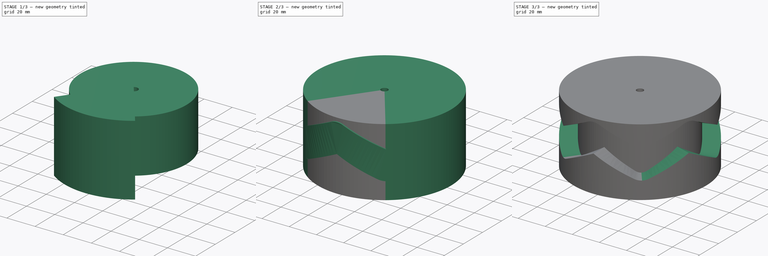
[diagram: build sequence overview — one tinted view per stage of 3, left to right]
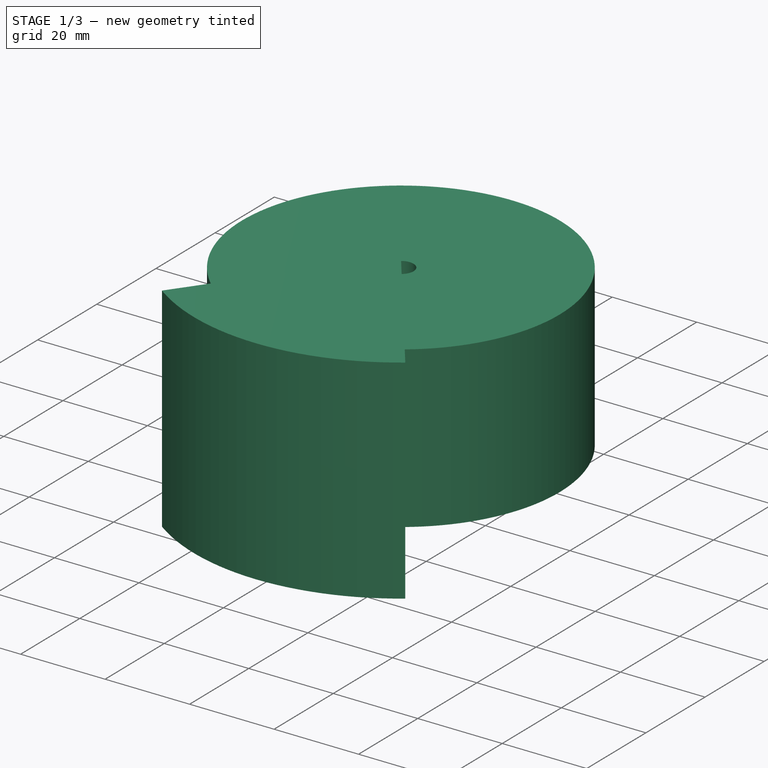
[diagram: stage 1 of 3 — iso view after this stage's code; geometry added in this stage tinted green]
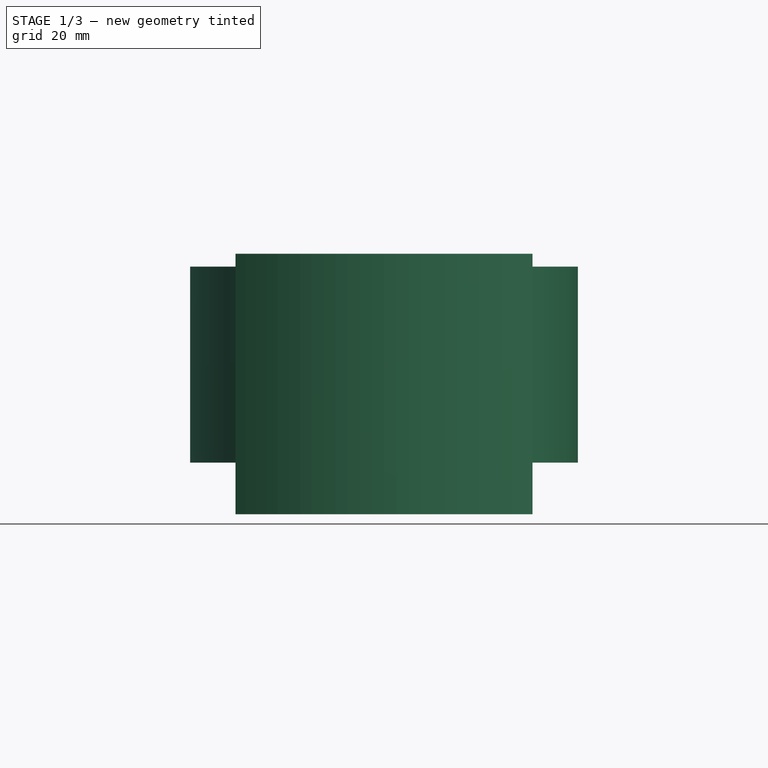
[diagram: stage 1 of 3 — front view after this stage's code; geometry added in this stage tinted green]
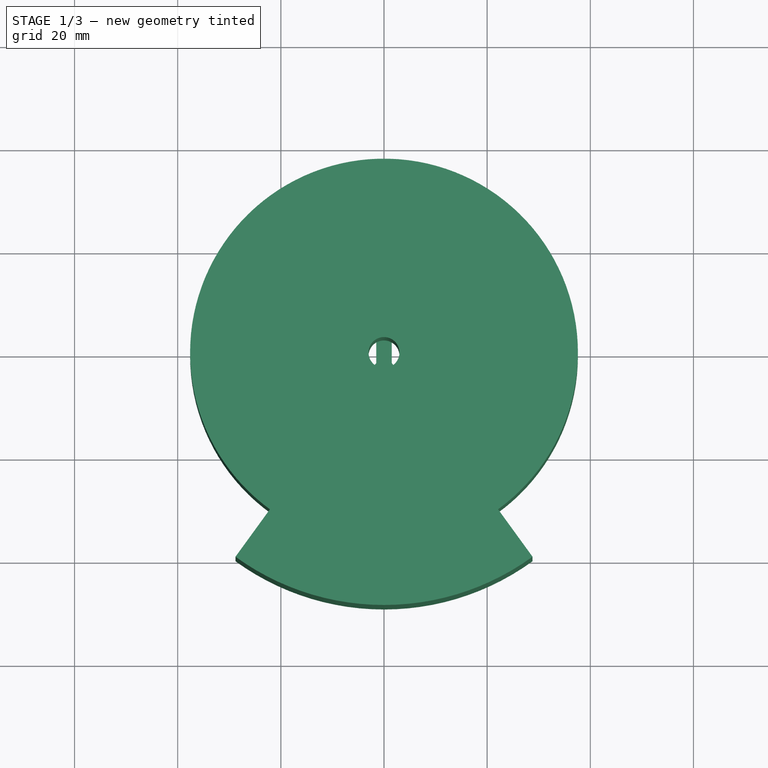
[diagram: stage 1 of 3 — top view after this stage's code; geometry added in this stage tinted green]
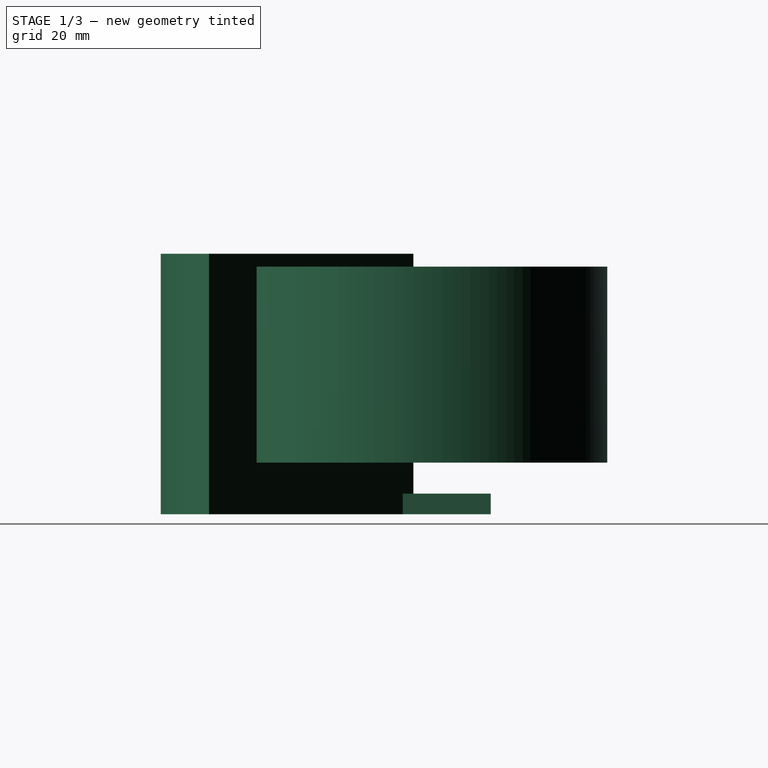
[diagram: stage 1 of 3 — right view after this stage's code; geometry added in this stage tinted green]
FCSTD DOCUMENT  (FreeCAD 0.22R38467 (Git))
Label: camgroove
objects: Part::FeaturePython×4, PartDesign::Line×3, Part::Cut×2, Part::Cylinder×1, App::VarSet×1, Sketcher::SketchObject×1, Part::Box×1, App::Part×1
note: 13 computed .brp shape members not serialized (recipe doc carries the construction recipe); baked Part::Feature solids carry a one-line shape summary decoded from their .brp

FEATURE [Part::Cylinder] Cylinder
  Angle = 72
  AttacherType = Attacher::AttachEngine3D
  FirstAngle = 0
  Height = 50.5
  Placement = pos=(0,0,0) rot=(0,0,1;-2.19911rad)
  Radius = 49
  SecondAngle = 0
  expr: .Placement.Rotation.Angle = -90 ° - 180 ° / VarSet.Peaks
  expr: Angle = 360 / VarSet.Peaks
  expr: Height = VarSet.Base_CylinderHeight
  expr: Radius = VarSet.Base_CylinderRadius
FEATURE [Part::Box] Box  label="Key Slot"
  AttacherType = Attacher::AttachEngine3D
  Height = 4
  Length = 3
  Placement = pos=(-1.5,-15,0) rot=(0,0,1;0rad)
  Width = 30
  expr: .Placement.Base.x = Length * -0.5
  expr: .Placement.Base.y = Width * -0.5
FEATURE [PartDesign::Line] HoleAxis_1  label="Axle AP"
  AttacherType = Attacher::AttachEngineLine
  AttachmentSupport = -> [Cut001]
  Length = 4.12311
  MapMode = 19
  Placement = pos=(0,4e-16,0) rot=(0,0,1;2.2143rad)
  ResizeMode = 1
FEATURE [PartDesign::Line] Axis_1  label="Key1 AP"
  AttacherType = Attacher::AttachEngineLine
  AttachmentOffset = pos=(0,0,-7) rot=(0,0,1;0rad)
  AttachmentSupport = -> [Cut001]
  Length = 200
  MapMode = 42
  Placement = pos=(1e-15,-8.5,-7) rot=(0,0,1;0rad)
  ResizeMode = 1
FEATURE [PartDesign::Line] Axis_2  label="Key2 AP"
  AttacherType = Attacher::AttachEngineLine
  AttachmentOffset = pos=(0,0,-7) rot=(0,0,1;0rad)
  AttachmentSupport = -> [Cut001]
  Length = 200
  MapMode = 42
  Placement = pos=(8e-16,8.5,-7) rot=(0,0,1;0rad)
  ResizeMode = 1
FEATURE [Part::FeaturePython] Tube001  label="Colour for render"  # WARN: FeaturePython — macro-defined, semantics opaque (R4)
  AttacherType = Attacher::AttachEngine3D
  Height = 38
  InnerRadius = 3
  OuterRadius = 37.6
  Placement = pos=(0,0,10) rot=(0,0,1;0rad)
FEATURE [App::Part] Part  label="Cam Groove"
  Group = -> [VarSet,Cylinder,Sketch_On_Surface,Array,Tube,Cut,Mapped_Sketch,Box,Cut001,HoleAxis_1,Axis_1,Axis_2,Tube001]
  Origin = -> Origin
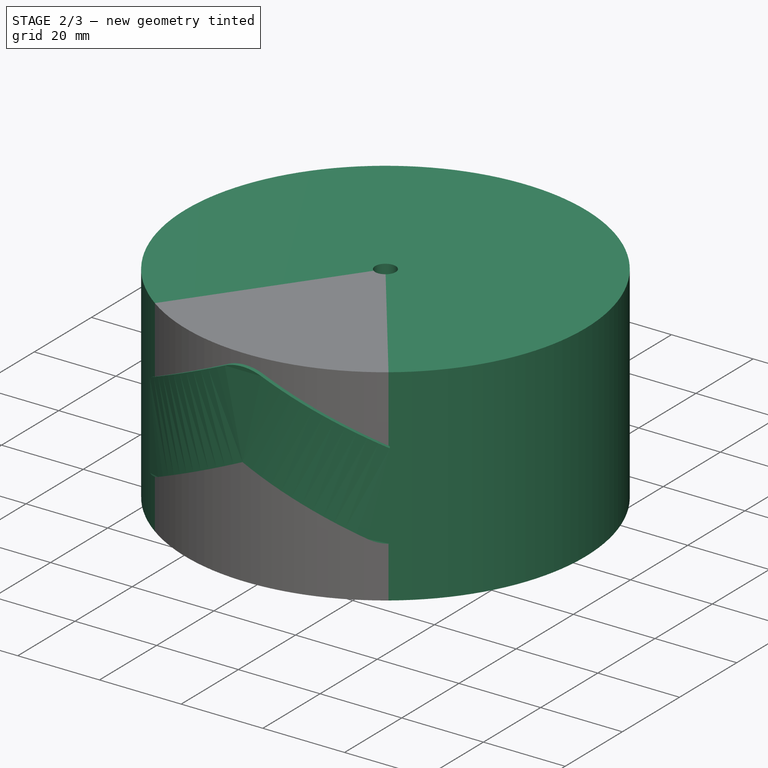
[diagram: stage 2 of 3 — iso view after this stage's code; geometry added in this stage tinted green]
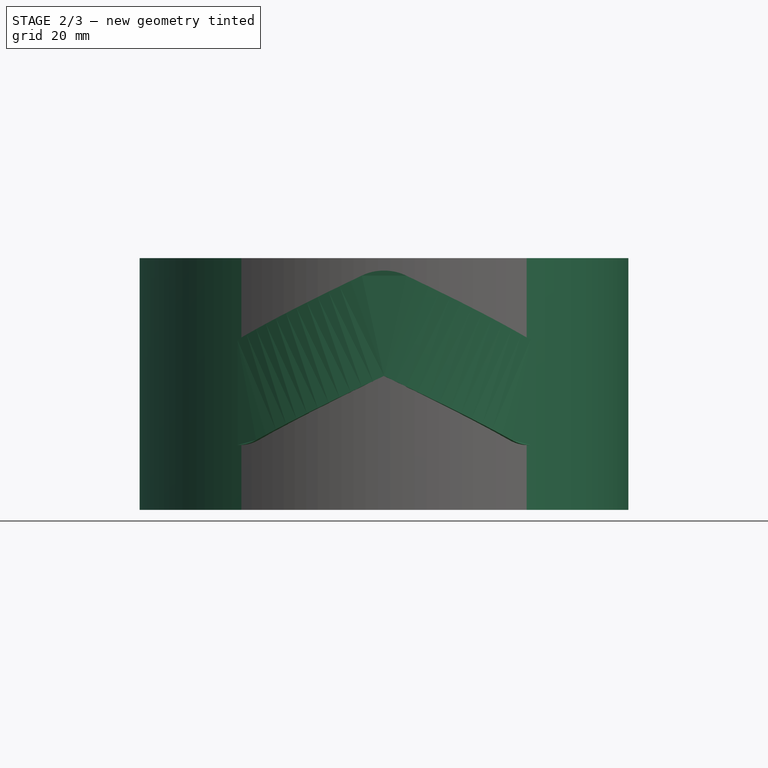
[diagram: stage 2 of 3 — front view after this stage's code; geometry added in this stage tinted green]
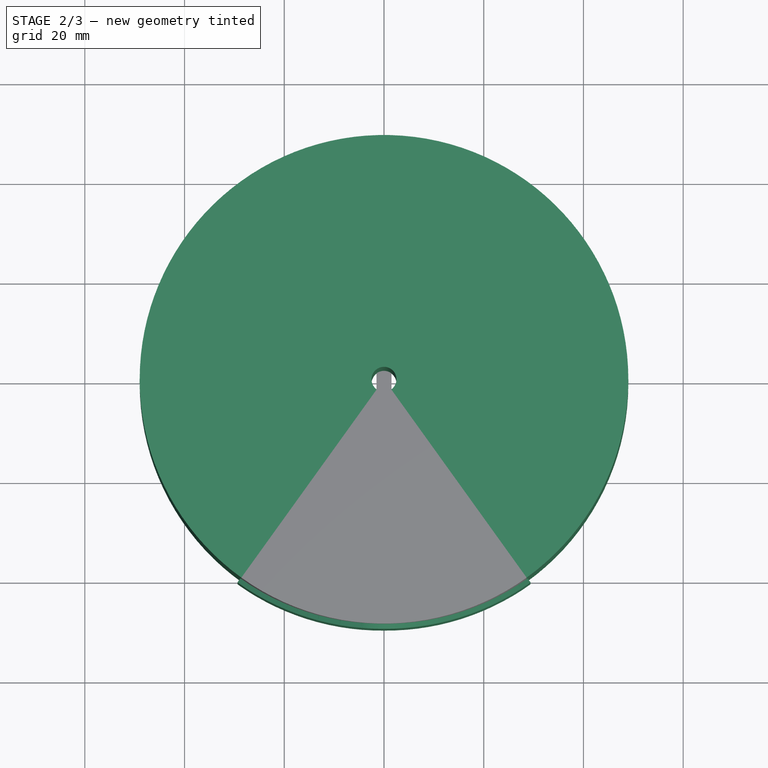
[diagram: stage 2 of 3 — top view after this stage's code; geometry added in this stage tinted green]
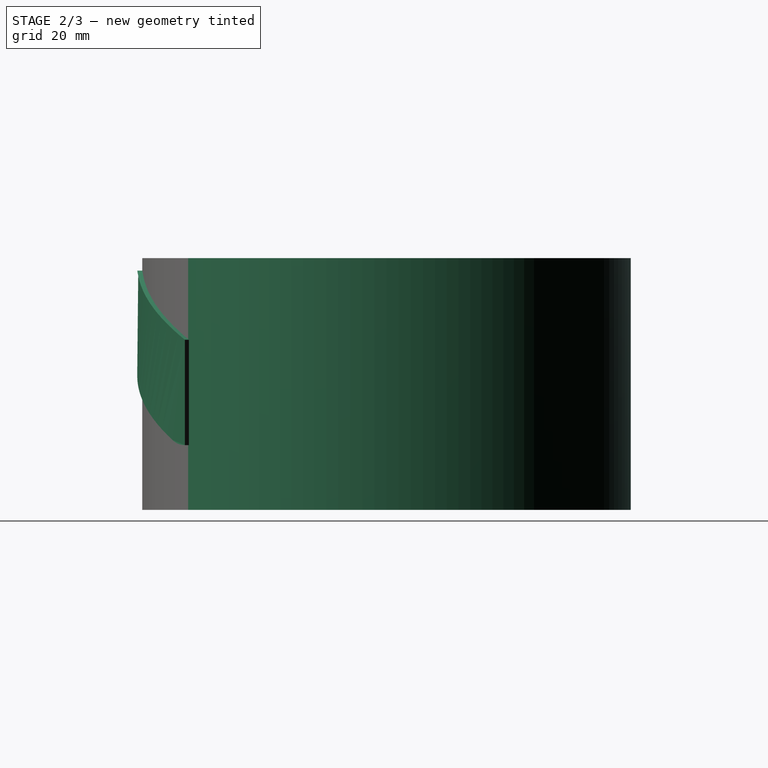
[diagram: stage 2 of 3 — right view after this stage's code; geometry added in this stage tinted green]
FEATURE [App::VarSet] VarSet
  Base_CylinderHeight = 50.5
  Base_CylinderRadius = 49
  BottomPad = 13
  CamTravel = 15
  GrooveDepth = 12
  InnerRadius = 2.5
  NomGrooveWidth = 20
  Peaks = 5
  TopPad = 2.5
  expr: Base_CylinderHeight = NomGrooveWidth + CamTravel + TopPad + BottomPad
FEATURE [Sketcher::SketchObject] Mapped_Sketch
  ArcFitTolerance = 1e-06
  AttachmentSupport = -> [Cylinder]
  FullyConstrained = true
  MakeInternals = false
  expr: .Constraints.CamTravel = VarSet.CamTravel
  expr: .Constraints.CylinderHeight = Cylinder.Height
  expr: .Constraints.ForcedTrackWidth = VarSet.NomGrooveWidth
  expr: .Constraints.NomTrackWidth = VarSet.NomGrooveWidth
  expr: .Constraints.arclength = 2 * pi * Cylinder.Radius / VarSet.Peaks
  expr: Constraints[33] = VarSet.NomGrooveWidth / 2 + VarSet.TopPad
  sketch-geometry (21):
    g0: LineSegment [constr] StartX=0 StartY=0 StartZ=0 EndX=61.5752 EndY=0 EndZ=0
    g1: LineSegment [constr] StartX=61.5752 StartY=0 StartZ=0 EndX=61.5752 EndY=50.5 EndZ=0
    g2: LineSegment [constr] StartX=61.5752 StartY=50.5 StartZ=0 EndX=0 EndY=50.5 EndZ=0
    g3: LineSegment [constr] StartX=0 StartY=50.5 StartZ=0 EndX=0 EndY=0 EndZ=0
    g4: ArcOfCircle [constr] CenterX=0 CenterY=27.5 CenterZ=0 NormalX=0 NormalY=0 NormalZ=1 AngleXU=0 Radius=10 StartAngle=4.71239 EndAngle=7.85398
    g5: Circle [constr] CenterX=30.7876 CenterY=12.5 CenterZ=0 NormalX=0 NormalY=0 NormalZ=1 AngleXU=0 Radius=10
    g6: ArcOfCircle [constr] CenterX=61.5752 CenterY=27.5 CenterZ=0 NormalX=0 NormalY=0 NormalZ=1 AngleXU=0 Radius=10 StartAngle=1.5708 EndAngle=4.71239
    g7: LineSegment StartX=3.1e-15 StartY=37.5 StartZ=0 EndX=3.1e-15 EndY=16.3763 EndZ=0
    g8: LineSegment StartX=61.5752 StartY=37.5 StartZ=0 EndX=61.5752 EndY=16.3763 EndZ=0
    g9: LineSegment StartX=4.37991 StartY=36.4898 StartZ=0 EndX=30.7876 EndY=23.6237 EndZ=0
    g10: LineSegment StartX=30.7876 StartY=23.6237 StartZ=0 EndX=57.1953 EndY=36.4898 EndZ=0
    g11: LineSegment StartX=35.1675 StartY=3.51021 StartZ=0 EndX=61.5752 EndY=16.3763 EndZ=0
    g12: LineSegment StartX=26.4077 StartY=3.51021 StartZ=0 EndX=3.6e-15 EndY=16.3763 EndZ=0
    g13: ArcOfCircle CenterX=30.7876 CenterY=12.5 CenterZ=0 NormalX=0 NormalY=0 NormalZ=1 AngleXU=0 Radius=10 StartAngle=4.25903 EndAngle=5.16575
    g14: LineSegment [constr] StartX=30.7876 StartY=12.5 StartZ=0 EndX=30.7876 EndY=23.6237 EndZ=0
    g15: LineSegment [constr] StartX=0 StartY=12.5 StartZ=0 EndX=61.5752 EndY=12.5 EndZ=0
    g16: ArcOfCircle CenterX=0 CenterY=27.5 CenterZ=0 NormalX=0 NormalY=0 NormalZ=1 AngleXU=0 Radius=10 StartAngle=1.11743 EndAngle=1.5708
    g17: ArcOfCircle CenterX=61.5752 CenterY=27.5 CenterZ=0 NormalX=0 NormalY=0 NormalZ=1 AngleXU=0 Radius=10 StartAngle=1.5708 EndAngle=2.02416
    g18: LineSegment [constr] StartX=56.9653 StartY=14.1303 StartZ=0 EndX=48.2055 EndY=32.1099 EndZ=0
    g19: LineSegment [constr] StartX=4.60989 StartY=14.1303 StartZ=0 EndX=13.3697 EndY=32.1099 EndZ=0
    g20: LineSegment [constr] StartX=22.0278 StartY=5.64414 StartZ=0 EndX=30.7876 EndY=23.6237 EndZ=0
  constraints (62):
    c: Coincident(g0,g-1)
    c: Coincident(g0,g1)
    c: Coincident(g1,g2)
    c: Coincident(g2,g3)
    c: Coincident(g3,g0)
    c: Horizontal(g0)
    c: Horizontal(g2)
    c: Vertical(g1)
    c: Vertical(g3)
    c: DistanceX(g2,g2) = 61.5752  'arclength'
    c: PointOnObject(g4,g3)
    c: PointOnObject(g4,g3)
    c: PointOnObject(g6,g1)
    c: Equal(g6,g4)
    c: Equal(g4,g5)
    c: Horizontal(g4,g6)
    c: DistanceY(g5,g4) = 15  'CamTravel'
    c: PointOnObject(g6,g1)
    c: Coincident(g7,g4)
    c: Vertical(g7)
    c: Coincident(g10,g9)
    c: PointOnObject(g11,g5)
    c: Coincident(g13,g5)
    c: Tangent(g13,g11) = -1.5708
    c: Tangent(g13,g12) = 1.5708
    c: Coincident(g9,g14)
    c: Vertical(g14)
    c: Coincident(g14,g5)
    c: PointOnObject(g15,g3)
    c: Horizontal(g15)
    c: PointOnObject(g15,g1)
    c: Symmetric(g15,g15,g5)
    c: Diameter(g5) = 20  'NomTrackWidth'
    c: DistanceY(g5) = 12.5
    c: Coincident(g16,g4)
    c: Coincident(g16,g4)
    c: Tangent(g16,g9) = 1.5708
    c: DistanceY(g1,g1) = 50.5  'CylinderHeight'
    c: PointOnObject(g6,g1)
    c: Coincident(g17,g6)
    c: Coincident(g17,g8)
    c: PointOnObject(g8,g1)
    c: Tangent(g17,g10) = 1.5708
    c: PointOnObject(g18,g10)
    c: Perpendicular(g11,g18)
    c: Distance(g18) = 20  'ForcedTrackWidth'
    c: Coincident(g11,g8)
    c: PointOnObject(g8,g1)
    c: Tangent(g18,g6)
    c: PointOnObject(g18,g11)
    c: Equal(g17,g6)
    c: Coincident(g12,g7)
    c: PointOnObject(g19,g12)
    c: PointOnObject(g19,g9)
    c: Perpendicular(g12,g19)
    c: Tangent(g19,g4)
    c: Equal(g19,g18)
    c: PointOnObject(g4,g3)
    c: PointOnObject(g20,g12)
    c: Perpendicular(g12,g20)
    c: Coincident(g20,g9)
    c: Equal(g20,g18)
FEATURE [Part::FeaturePython] Sketch_On_Surface  # WARN: FeaturePython — macro-defined, semantics opaque (R4)
  ConstructionBounds = true
  FillExtrusion = true
  FillFaces = true
  Offset = -12
  ReverseU = false
  ReverseV = false
  Sketch = -> Mapped_Sketch
  SwapUV = false
  Thickness = 13
  expr: Offset = -VarSet.GrooveDepth
  expr: Thickness = VarSet.GrooveDepth + 1 mm
FEATURE [Part::FeaturePython] Tube  # WARN: FeaturePython — macro-defined, semantics opaque (R4)
  AttacherType = Attacher::AttachEngine3D
  Height = 50.5
  InnerRadius = 2.5
  OuterRadius = 49
  expr: Height = Cylinder.Height
  expr: InnerRadius = VarSet.InnerRadius
  expr: OuterRadius = Cylinder.Radius
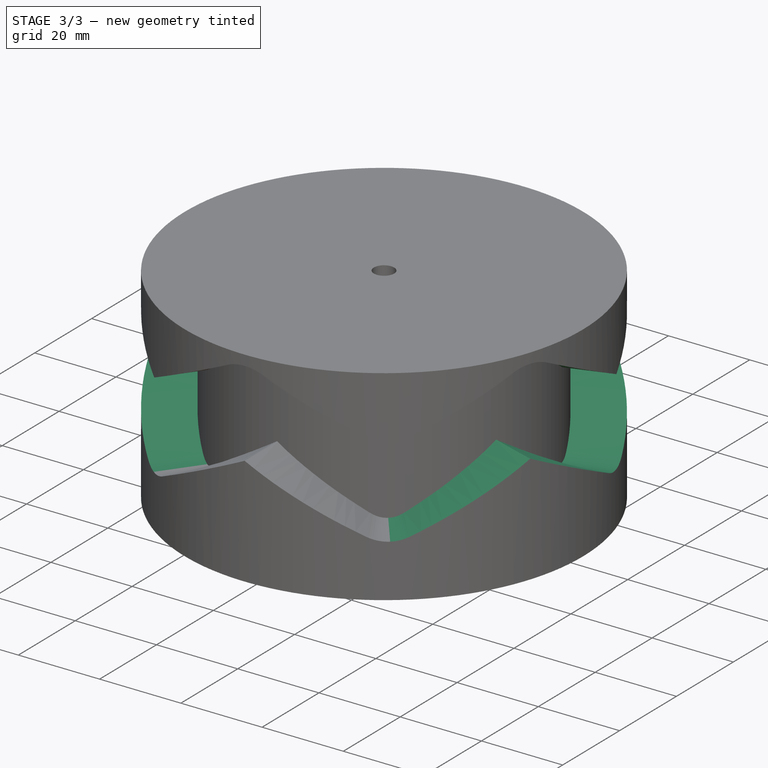
[diagram: stage 3 of 3 — iso view after this stage's code; geometry added in this stage tinted green]
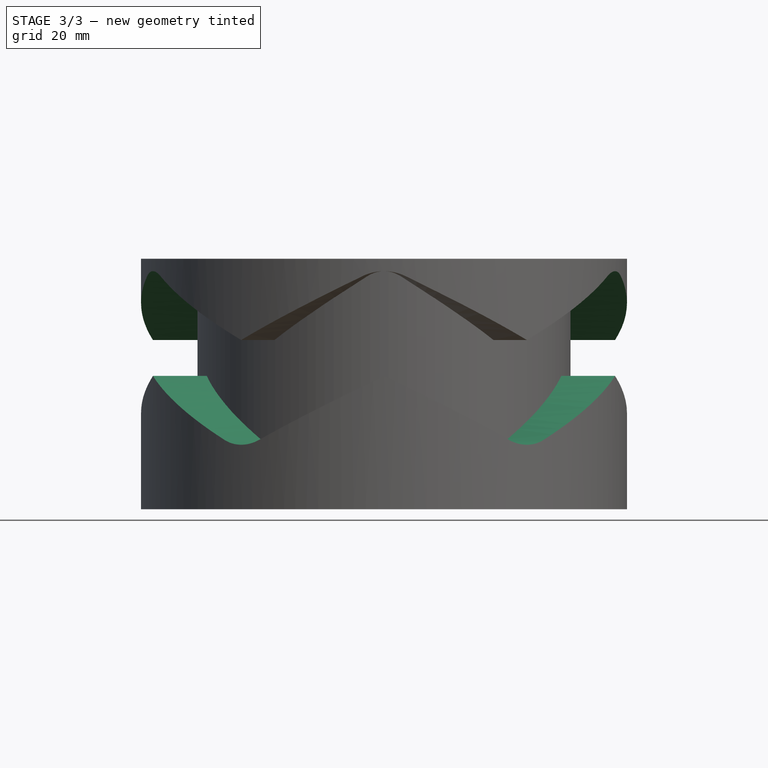
[diagram: stage 3 of 3 — front view after this stage's code; geometry added in this stage tinted green]
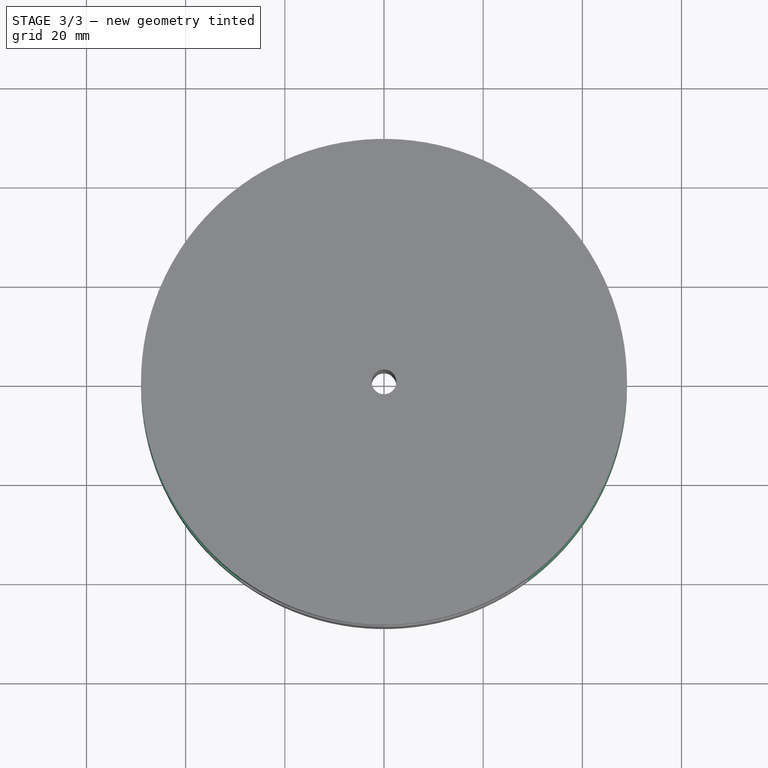
[diagram: stage 3 of 3 — top view after this stage's code; geometry added in this stage tinted green]
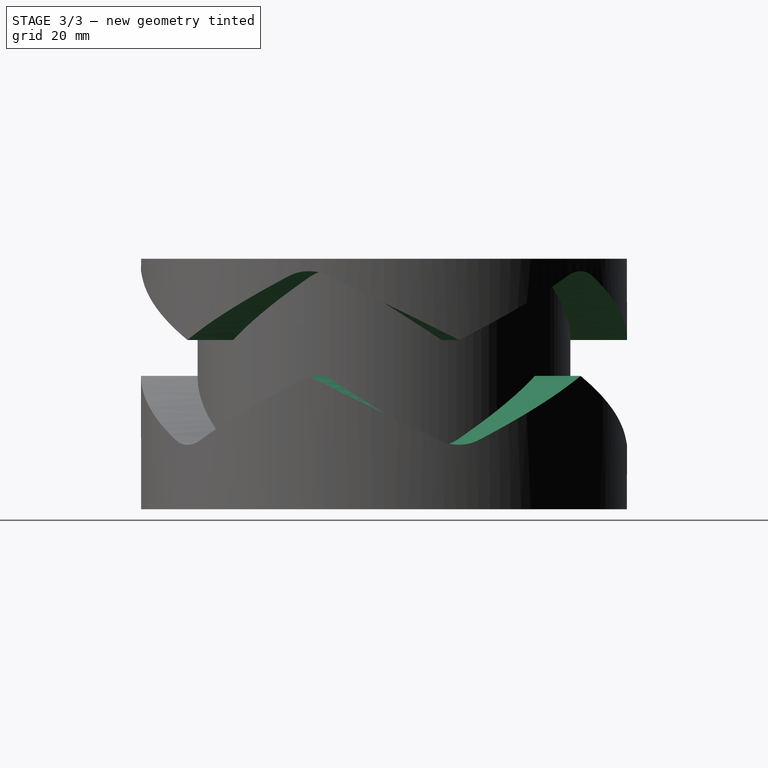
[diagram: stage 3 of 3 — right view after this stage's code; geometry added in this stage tinted green]
FEATURE [Part::FeaturePython] Array  # Draft array (typed FeaturePython)
  Angle = 360
  ArrayType = 1
  Axis = (0,0,1)
  Base = -> Sketch_On_Surface
  Center = (0,0,0)
  Count = 5
  Fuse = true
  IntervalAxis = (0,0,0)
  IntervalX = (50,0,0)
  IntervalY = (0,50,0)
  IntervalZ = (0,0,50)
  NumberCircles = 3
  NumberPolar = 5
  NumberX = 2
  NumberY = 2
  NumberZ = 1
  RadialDistance = 50
  Symmetry = 1
  TangentialDistance = 25
  expr: NumberPolar = VarSet.Peaks
FEATURE [Part::Cut] Cut
  Base = -> Tube
  Tool = -> Array
FEATURE [Part::Cut] Cut001
  Base = -> Cut
  Refine = true
  Tool = -> Box
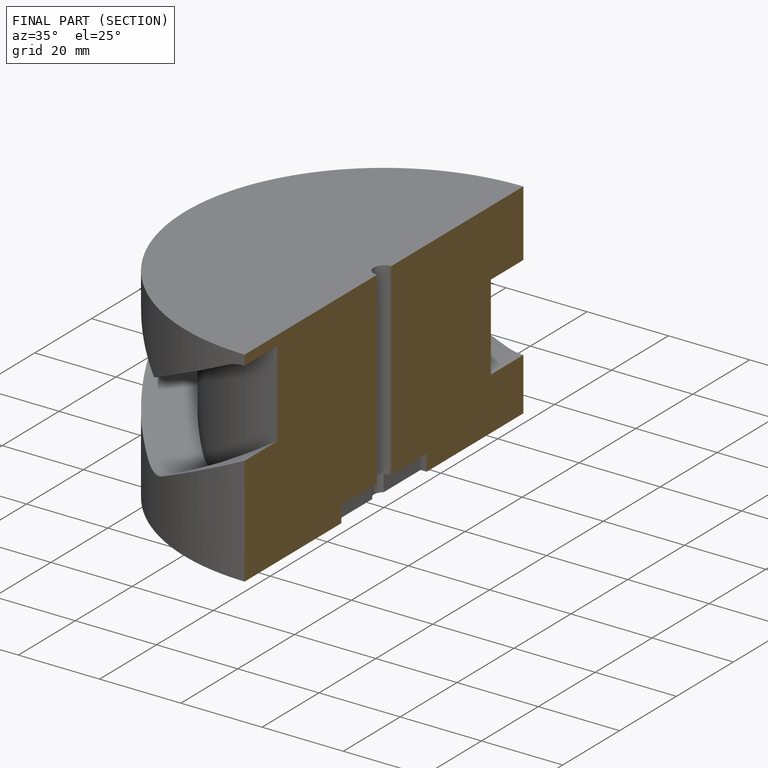
[diagram: finished part — half-section view (interior)]
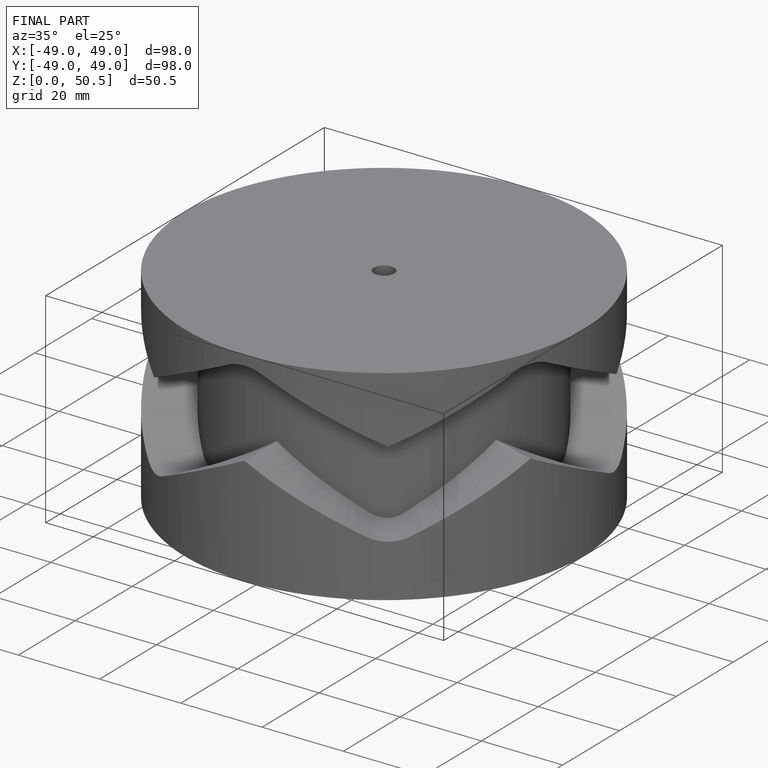
[diagram: finished part — iso view with bounding-box wireframe]
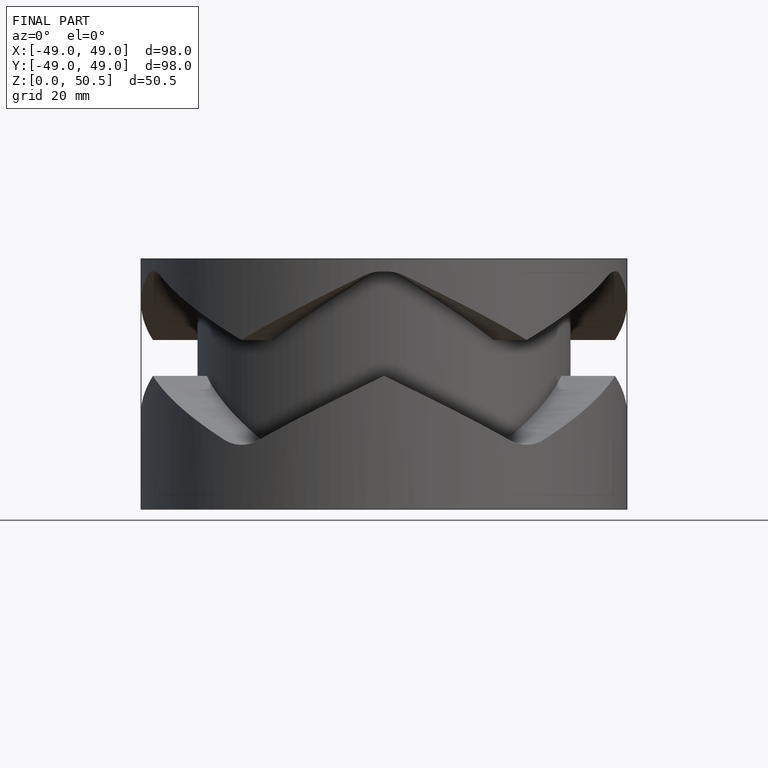
[diagram: finished part — front view with bounding-box wireframe]
